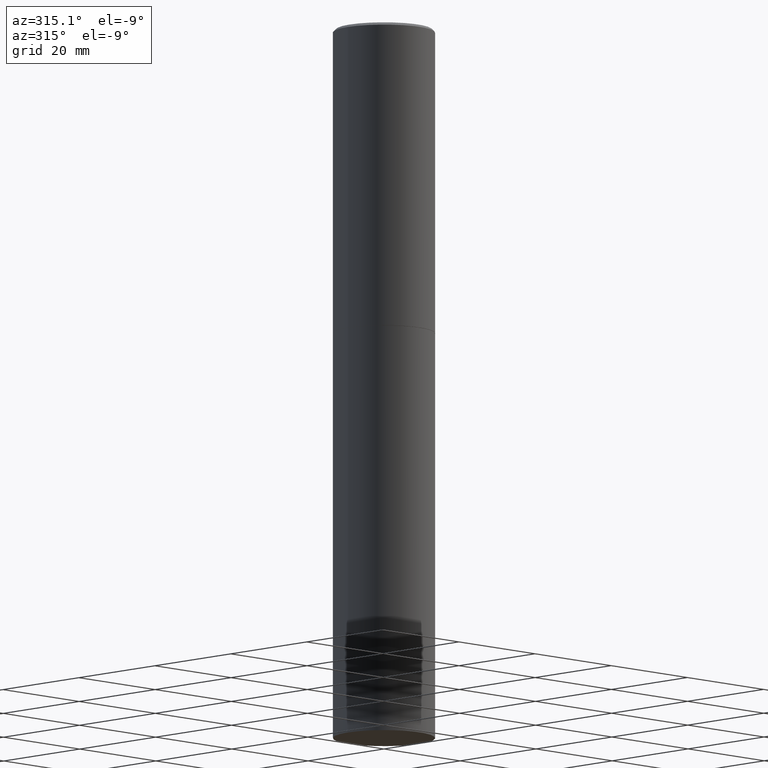
[diagram: clean part render]
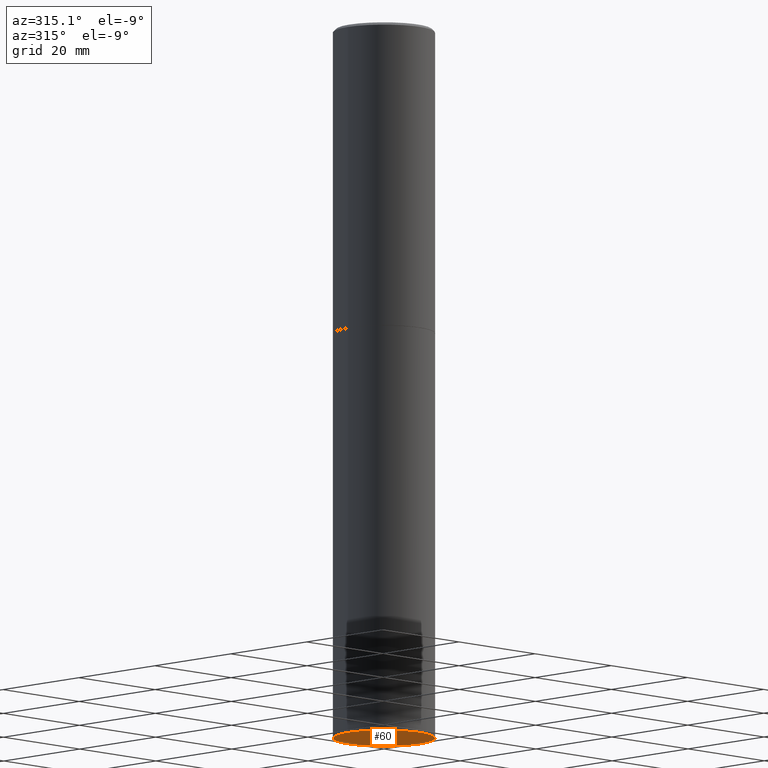
[diagram: same view with one face highlighted and labeled with its STEP entity id]
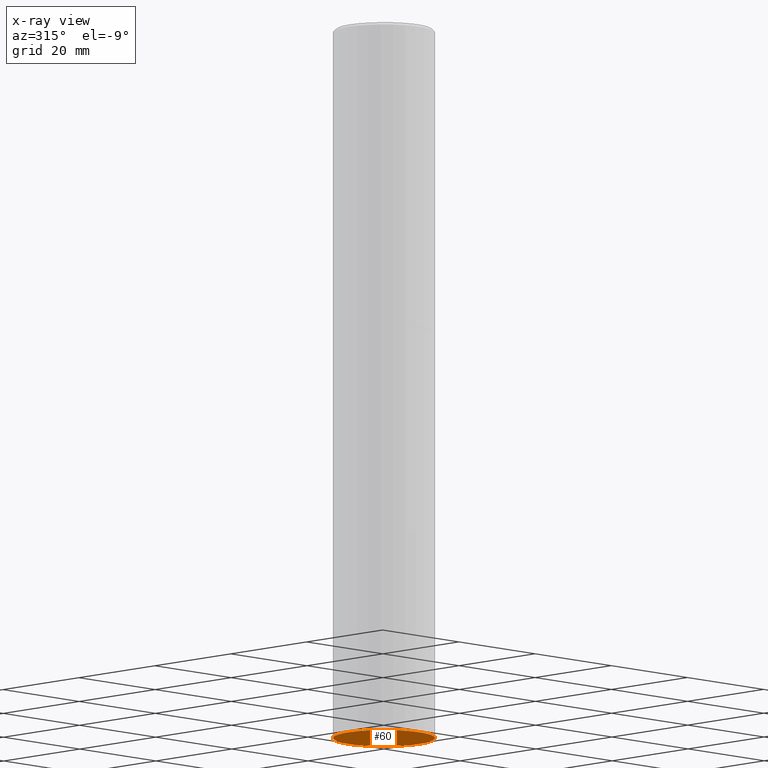
[diagram: x-ray of the same camera — body ghosted, the highlighted face saturated]
A machine part, auxiliary view. The second image highlights one B-rep face of the part: STEP entity #60.
The next image is the same camera in x-ray: the body ghosted, the highlighted face saturated — about 0% of this face is hidden behind the body in this view.
In plain terms, the highlighted planar face has unit normal (0, -0, -1).
Its self-contained STEP definition (entity closure, byte-faithful):
#5 = DIRECTION ( 'NONE',  ( -1.000000000000000000, 6.982962677686265922E-15, -4.876176775795935793E-29 ) ) ;
#35 = EDGE_CURVE ( 'NONE', #86, #264, #214, .T. ) ;
#60 = ADVANCED_FACE ( 'NONE', ( #145 ), #261, .T. ) ;
#86 = VERTEX_POINT ( 'NONE', #336 ) ;
#96 = EDGE_CURVE ( 'NONE', #264, #86, #256, .T. ) ;
#120 = DIRECTION ( 'NONE',  ( 1.000000000000000000, -6.982962677686261189E-15, 0.000000000000000000 ) ) ;
#134 = CARTESIAN_POINT ( 'NONE',  ( -0.3750000000000000555, -1.042851976156142014E-14, -5.250000000000000000 ) ) ;
#145 = FACE_OUTER_BOUND ( 'NONE', #348, .T. ) ;
#163 = ORIENTED_EDGE ( 'NONE', *, *, #96, .F. ) ;
#171 = DIRECTION ( 'NONE',  ( -2.445468806185136597E-29, 3.491481338843145583E-15, 1.000000000000000000 ) ) ;
#197 = CARTESIAN_POINT ( 'NONE',  ( 1.283871123247196713E-28, -1.833027702892651322E-14, -5.250000000000000000 ) ) ;
#199 = DIRECTION ( 'NONE',  ( -2.445468806185136597E-29, 3.491481338843145583E-15, 1.000000000000000000 ) ) ;
#206 = AXIS2_PLACEMENT_3D ( 'NONE', #284, #199, #120 ) ;
#214 = CIRCLE ( 'NONE', #206, 0.3750000000000000555 ) ;
#221 = AXIS2_PLACEMENT_3D ( 'NONE', #197, #171, #337 ) ;
#247 = ORIENTED_EDGE ( 'NONE', *, *, #35, .F. ) ;
#254 = DIRECTION ( 'NONE',  ( 2.438088387897960049E-29, -3.491481338843145188E-15, -1.000000000000000000 ) ) ;
#256 = CIRCLE ( 'NONE', #221, 0.3750000000000000555 ) ;
#261 = PLANE ( 'NONE',  #299 ) ;
#264 = VERTEX_POINT ( 'NONE', #134 ) ;
#284 = CARTESIAN_POINT ( 'NONE',  ( 1.283871123247196713E-28, -1.833027702892651322E-14, -5.250000000000000000 ) ) ;
#299 = AXIS2_PLACEMENT_3D ( 'NONE', #314, #254, #5 ) ;
#314 = CARTESIAN_POINT ( 'NONE',  ( 2.618611004132478601E-15, 0.3749999999999817368, -5.250000000000000888 ) ) ;
#336 = CARTESIAN_POINT ( 'NONE',  ( 0.3750000000000000555, -2.094888803305886324E-14, -5.250000000000000000 ) ) ;
#337 = DIRECTION ( 'NONE',  ( 1.000000000000000000, -6.982962677686261189E-15, 0.000000000000000000 ) ) ;
#348 = EDGE_LOOP ( 'NONE', ( #247, #163 ) ) ;